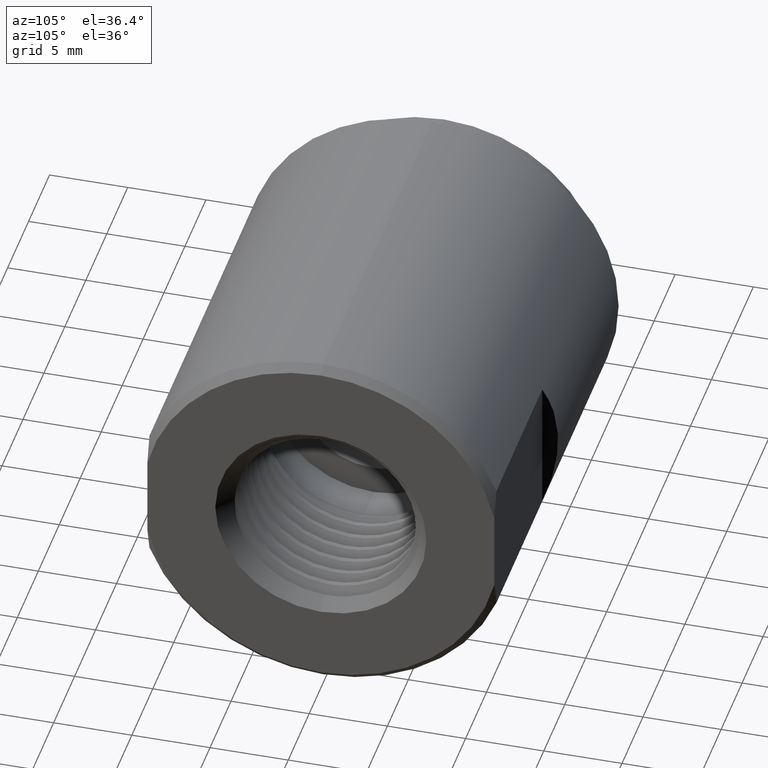
[diagram: clean part render]
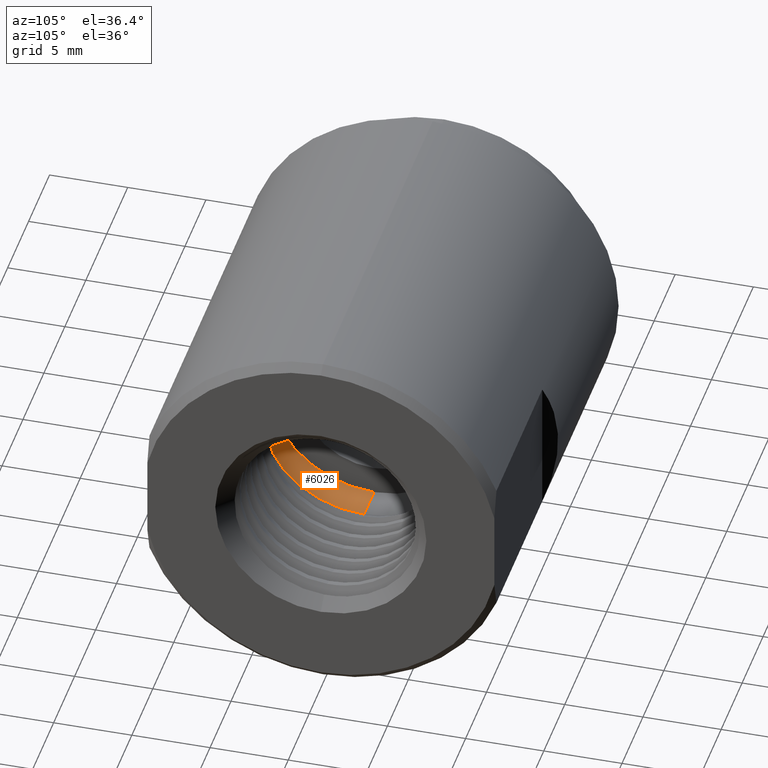
[diagram: same view with one face highlighted and labeled with its STEP entity id]
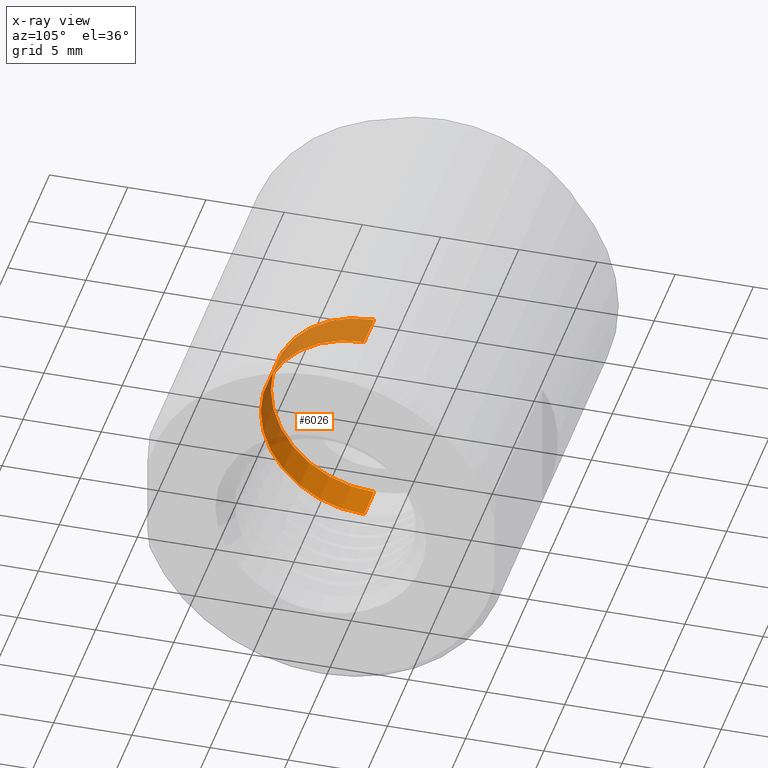
[diagram: x-ray of the same camera — body ghosted, the highlighted face saturated]
A machine part, auxiliary view. The second image highlights one B-rep face of the part: STEP entity #6026.
The next image is the same camera in x-ray: the body ghosted, the highlighted face saturated — about 50% of this face is hidden behind the body in this view.
In plain terms, the highlighted cylindrical surface (partial cylindrical patch) has radius 6.604 mm, axis along (-1, -0, -0).
Its self-contained STEP definition (entity closure, byte-faithful):
#66 = LINE ( 'NONE', #6235, #7902 ) ;
#320 = CARTESIAN_POINT ( 'NONE',  ( 0.0000000000000000000, 0.0000000000000000000, 0.0000000000000000000 ) ) ;
#523 = DIRECTION ( 'NONE',  ( 0.0000000000000000000, 0.0000000000000000000, 1.000000000000000000 ) ) ;
#579 = CARTESIAN_POINT ( 'NONE',  ( 0.4685000000000000830, 3.184081677783118684E-17, -0.2600000000000000089 ) ) ;
#897 = ORIENTED_EDGE ( 'NONE', *, *, #1130, .T. ) ;
#1012 = VERTEX_POINT ( 'NONE', #2395 ) ;
#1130 = EDGE_CURVE ( 'NONE', #8831, #5623, #66, .T. ) ;
#1246 = VERTEX_POINT ( 'NONE', #10030 ) ;
#1255 = AXIS2_PLACEMENT_3D ( 'NONE', #9664, #4282, #523 ) ;
#1515 = EDGE_CURVE ( 'NONE', #5623, #1012, #9594, .T. ) ;
#1538 = LINE ( 'NONE', #5154, #1599 ) ;
#1599 = VECTOR ( 'NONE', #9949, 39.37007874015748143 ) ;
#1778 = CIRCLE ( 'NONE', #3270, 0.2600000000000000089 ) ;
#2395 = CARTESIAN_POINT ( 'NONE',  ( 0.3744999999999999996, 0.0000000000000000000, 0.2600000000000001199 ) ) ;
#3270 = AXIS2_PLACEMENT_3D ( 'NONE', #3522, #9732, #6170 ) ;
#3522 = CARTESIAN_POINT ( 'NONE',  ( 0.4685000000000000830, 0.0000000000000000000, 0.0000000000000000000 ) ) ;
#3878 = EDGE_CURVE ( 'NONE', #1246, #1012, #1538, .T. ) ;
#3966 = DIRECTION ( 'NONE',  ( -1.000000000000000000, -0.0000000000000000000, -0.0000000000000000000 ) ) ;
#4282 = DIRECTION ( 'NONE',  ( -1.000000000000000000, -0.0000000000000000000, -0.0000000000000000000 ) ) ;
#5154 = CARTESIAN_POINT ( 'NONE',  ( 0.0000000000000000000, 0.0000000000000000000, 0.2600000000000000644 ) ) ;
#5590 = CARTESIAN_POINT ( 'NONE',  ( 0.3744999999999999996, 3.184081677783119916E-17, -0.2600000000000001199 ) ) ;
#5623 = VERTEX_POINT ( 'NONE', #5590 ) ;
#6026 = ADVANCED_FACE ( 'NONE', ( #10292 ), #9340, .F. ) ;
#6170 = DIRECTION ( 'NONE',  ( 0.0000000000000000000, 0.0000000000000000000, 1.000000000000000000 ) ) ;
#6235 = CARTESIAN_POINT ( 'NONE',  ( 0.0000000000000000000, 3.184081677783119300E-17, -0.2600000000000000644 ) ) ;
#7562 = DIRECTION ( 'NONE',  ( 0.0000000000000000000, 0.0000000000000000000, 1.000000000000000000 ) ) ;
#7902 = VECTOR ( 'NONE', #8145, 39.37007874015748143 ) ;
#7998 = AXIS2_PLACEMENT_3D ( 'NONE', #320, #3966, #7562 ) ;
#8076 = ORIENTED_EDGE ( 'NONE', *, *, #11177, .F. ) ;
#8145 = DIRECTION ( 'NONE',  ( -1.000000000000000000, -0.0000000000000000000, -0.0000000000000000000 ) ) ;
#8288 = ORIENTED_EDGE ( 'NONE', *, *, #3878, .F. ) ;
#8831 = VERTEX_POINT ( 'NONE', #579 ) ;
#9340 = CYLINDRICAL_SURFACE ( 'NONE', #7998, 0.2600000000000000644 ) ;
#9594 = CIRCLE ( 'NONE', #1255, 0.2600000000000001199 ) ;
#9664 = CARTESIAN_POINT ( 'NONE',  ( 0.3744999999999999996, 0.0000000000000000000, 0.0000000000000000000 ) ) ;
#9732 = DIRECTION ( 'NONE',  ( -1.000000000000000000, -0.0000000000000000000, -0.0000000000000000000 ) ) ;
#9949 = DIRECTION ( 'NONE',  ( -1.000000000000000000, -0.0000000000000000000, -0.0000000000000000000 ) ) ;
#10030 = CARTESIAN_POINT ( 'NONE',  ( 0.4685000000000000830, 0.0000000000000000000, 0.2600000000000000089 ) ) ;
#10273 = ORIENTED_EDGE ( 'NONE', *, *, #1515, .T. ) ;
#10292 = FACE_OUTER_BOUND ( 'NONE', #11461, .T. ) ;
#11177 = EDGE_CURVE ( 'NONE', #8831, #1246, #1778, .T. ) ;
#11461 = EDGE_LOOP ( 'NONE', ( #8076, #897, #10273, #8288 ) ) ;